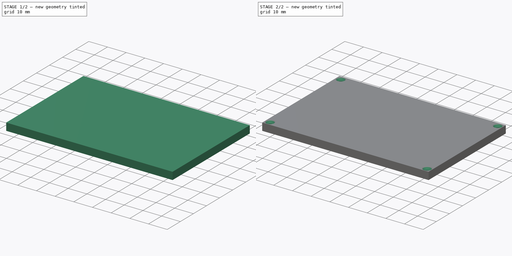
[diagram: build sequence overview — one tinted view per stage of 2, left to right]
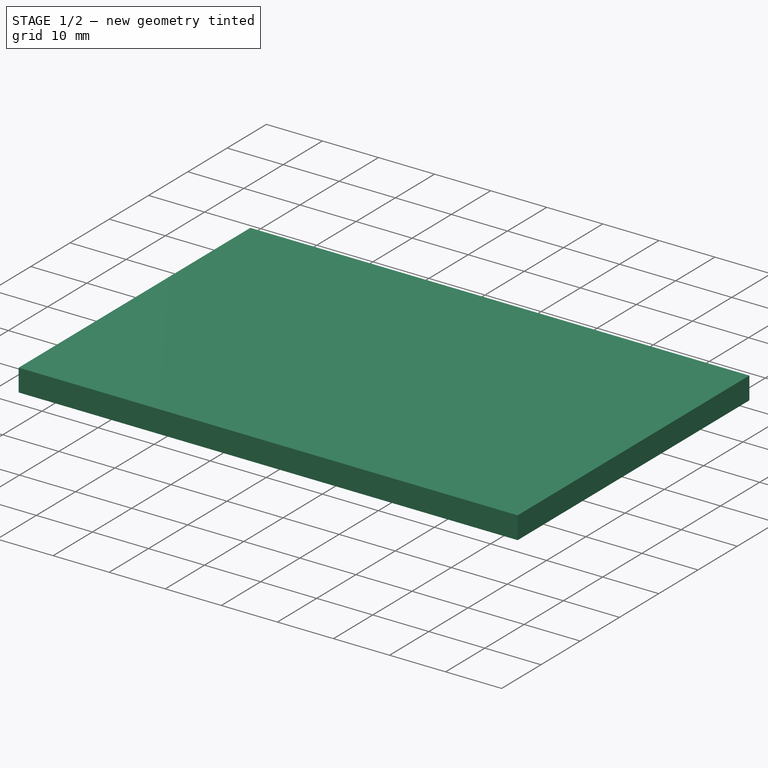
[diagram: stage 1 of 2 — iso view after this stage's code; geometry added in this stage tinted green]
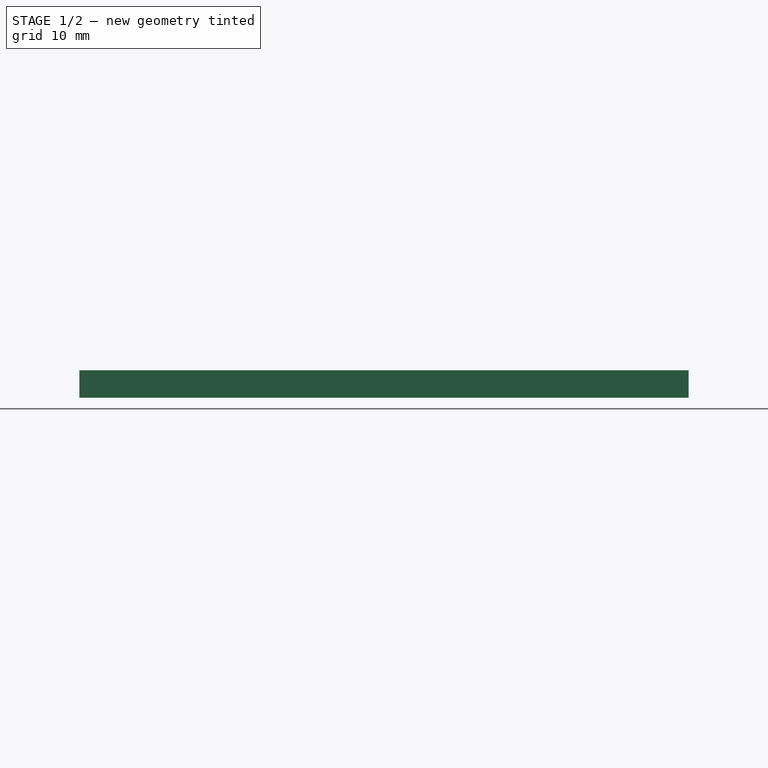
[diagram: stage 1 of 2 — front view after this stage's code; geometry added in this stage tinted green]
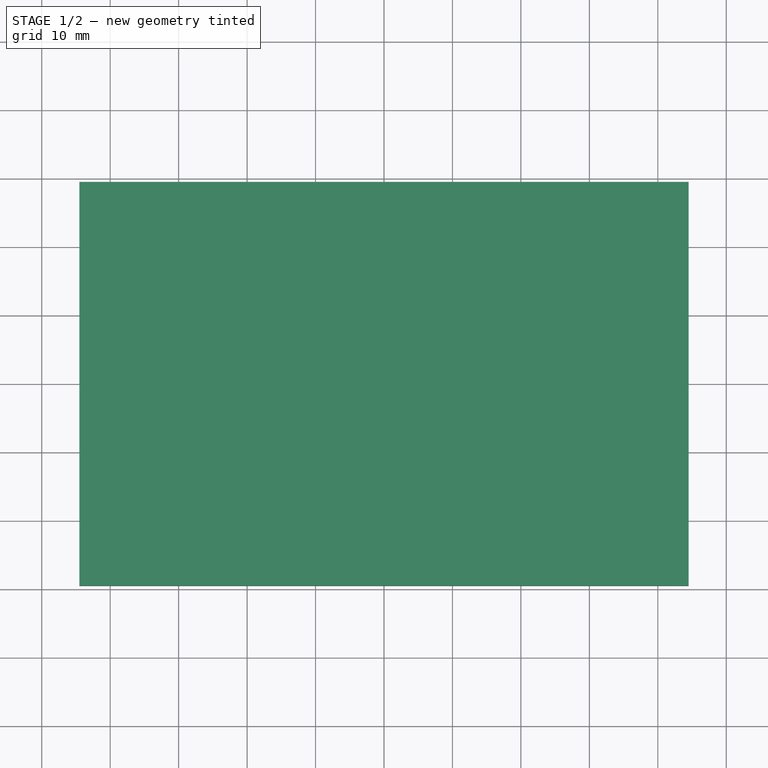
[diagram: stage 1 of 2 — top view after this stage's code; geometry added in this stage tinted green]
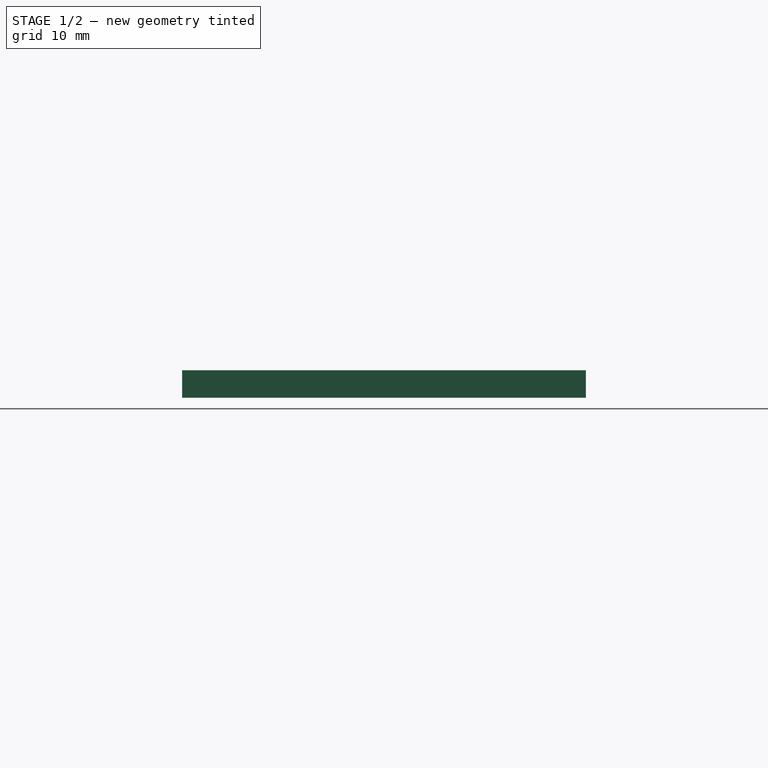
[diagram: stage 1 of 2 — right view after this stage's code; geometry added in this stage tinted green]
FCSTD DOCUMENT  (FreeCAD 0.20R29603 (Git))
Label: Breadboard_case_part2
License: All rights reserved
LicenseURL: http://en.wikipedia.org/wiki/All_rights_reserved
objects: Sketcher::SketchObject×2, Spreadsheet::Sheet×1, PartDesign::Pad×1, PartDesign::Hole×1, Part::Part2DObjectPython×1, PartDesign::Body×1, Part::Extrusion×1
note: 9 computed .brp shape members not serialized (recipe doc carries the construction recipe); baked Part::Feature solids carry a one-line shape summary decoded from their .brp

FEATURE [Sketcher::SketchObject] Sketch
  FullyConstrained = true
  MapMode = 5
  Support = -> [XY_Plane]
  expr: Constraints[10] = <<var>>.BD
  expr: Constraints[9] = <<var>>.LD
  sketch-geometry (4):
    g0: LineSegment StartX=-44.5 StartY=29.5 StartZ=0 EndX=44.5 EndY=29.5 EndZ=0
    g1: LineSegment StartX=44.5 StartY=29.5 StartZ=0 EndX=44.5 EndY=-29.5 EndZ=0
    g2: LineSegment StartX=44.5 StartY=-29.5 StartZ=0 EndX=-44.5 EndY=-29.5 EndZ=0
    g3: LineSegment StartX=-44.5 StartY=-29.5 StartZ=0 EndX=-44.5 EndY=29.5 EndZ=0
  constraints (11):
    c: Coincident(g0,g1)
    c: Coincident(g1,g2)
    c: Coincident(g2,g3)
    c: Coincident(g3,g0)
    c: Horizontal(g0)
    c: Horizontal(g2)
    c: Vertical(g1)
    c: Vertical(g3)
    c: Symmetric(g0,g2,g-1)
    c: DistanceX(g0,g0) = 89
    c: DistanceY(g1,g0) = 59
FEATURE [Spreadsheet::Sheet] Spreadsheet  label="var"
  cells = A2=Länge Deckel; B2(LD)=89; C2=79; A3=Breite Deckel; B3(BD)=59; C3=49; A4=Höhe Deckel; B4(HD)=4; A5=Schraubenlöcher Durchmesser; B5(SlD)=2.5; A6=Abstand Schraubenlöcher zum Rand; B6(ASlzR)=2.5
FEATURE [PartDesign::Pad] Pad
  Direction = (0,0,1)
  Length = 4
  Length2 = 10
  Profile = -> Sketch
  ReferenceAxis = -> Sketch [N_Axis]
  Type = 0
  expr: Length = <<var>>.HD
FEATURE [Part::Part2DObjectPython] ShapeString  # Draft 2D object (typed FeaturePython)
  FontFile = <userpath>/Downloads/unispace/unispace bd it.otf
  MakeFace = true
  Placement = pos=(-37.86,10.09,4) rot=(0,0,1;0rad)
  Size = 2
  String = 1AidTrainer
  Tracking = 0
FEATURE [PartDesign::Body] Body
  Group = -> [Sketch,Pad,Sketch001,Hole,ShapeString]
  Origin = -> Origin
  Tip = -> Hole
FEATURE [Part::Extrusion] Extrude
  Base = -> ShapeString
  Dir = (0,0,1)
  DirMode = 2
  FaceMakerClass = Part::FaceMakerBullseye
  LengthFwd = 1
  LengthRev = 0
  Reversed = true
  Solid = true
  Symmetric = false
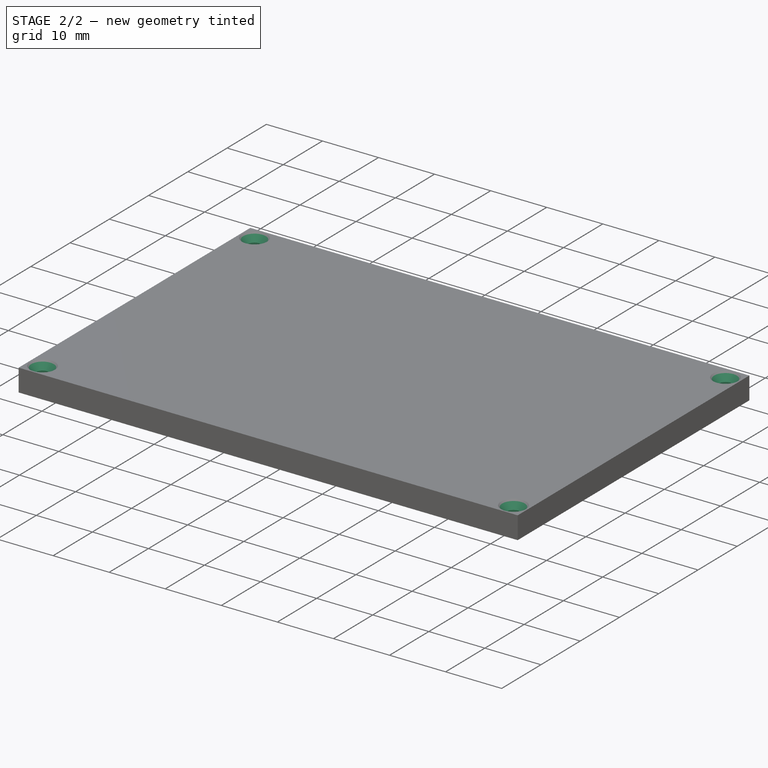
[diagram: stage 2 of 2 — iso view after this stage's code; geometry added in this stage tinted green]
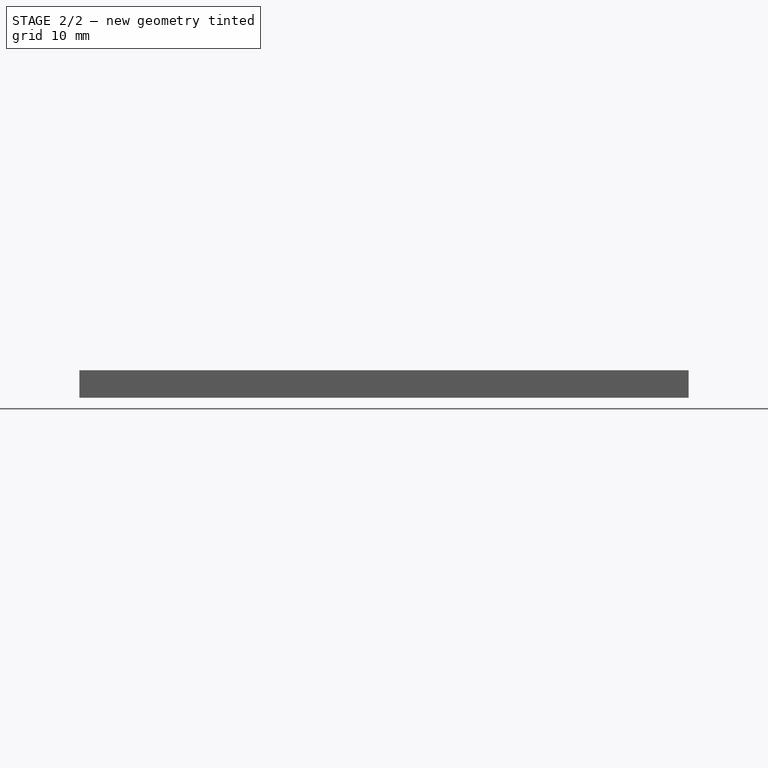
[diagram: stage 2 of 2 — front view after this stage's code; geometry added in this stage tinted green]
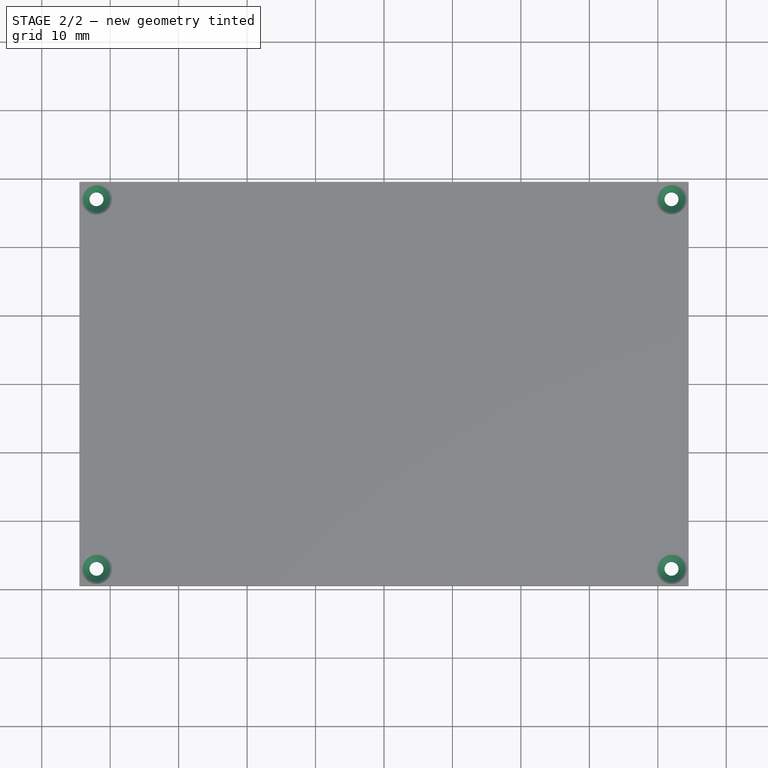
[diagram: stage 2 of 2 — top view after this stage's code; geometry added in this stage tinted green]
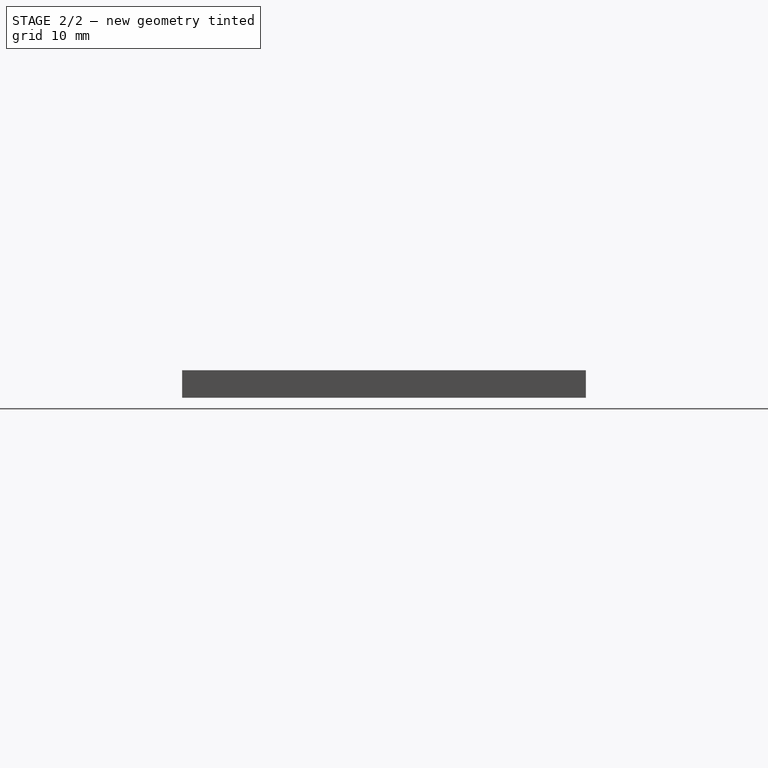
[diagram: stage 2 of 2 — right view after this stage's code; geometry added in this stage tinted green]
FEATURE [Sketcher::SketchObject] Sketch001
  ExternalGeometry = -> [Pad]
  FullyConstrained = true
  MapMode = 5
  Placement = pos=(0,0,4) rot=(0,0,1;0rad)
  Support = -> [Pad]
  expr: Constraints[10] = <<var>>.ASlzR
  expr: Constraints[11] = <<var>>.ASlzR
  expr: Constraints[3] = <<var>>.SlD
  expr: Constraints[4] = <<var>>.ASlzR
  expr: Constraints[5] = <<var>>.ASlzR
  expr: Constraints[6] = <<var>>.ASlzR
  expr: Constraints[7] = <<var>>.ASlzR
  expr: Constraints[8] = <<var>>.ASlzR
  expr: Constraints[9] = <<var>>.ASlzR
  sketch-geometry (4):
    g0: Circle CenterX=-42 CenterY=27 CenterZ=0 NormalX=0 NormalY=0 NormalZ=1 AngleXU=0 Radius=1.25
    g1: Circle CenterX=42 CenterY=27 CenterZ=0 NormalX=0 NormalY=0 NormalZ=1 AngleXU=0 Radius=1.25
    g2: Circle CenterX=42 CenterY=-27 CenterZ=0 NormalX=0 NormalY=0 NormalZ=1 AngleXU=0 Radius=1.25
    g3: Circle CenterX=-42 CenterY=-27 CenterZ=0 NormalX=0 NormalY=0 NormalZ=1 AngleXU=0 Radius=1.25
  constraints (12):
    c: Equal(g0,g1)
    c: Equal(g1,g2)
    c: Equal(g2,g3)
    c: Diameter(g0) = 2.5
    c: DistanceY(g0,g-6) = 2.5
    c: DistanceX(g-6,g0) = 2.5
    c: DistanceY(g1,g-4) = 2.5
    c: DistanceX(g1,g-4) = 2.5
    c: DistanceY(g-5,g2) = 2.5
    c: DistanceX(g2,g-5) = 2.5
    c: DistanceY(g-6,g3) = 2.5
    c: DistanceX(g-6,g3) = 2.5
FEATURE [PartDesign::Hole] Hole
  BaseFeature = -> Pad
  CustomThreadClearance = 0
  Depth = 187.958
  DepthType = 1
  Diameter = 2.05
  DrillForDepth = false
  DrillPoint = 1
  DrillPointAngle = 118
  HoleCutCountersinkAngle = 90
  HoleCutCustomValues = false
  HoleCutDepth = 0
  HoleCutDiameter = 4.5
  HoleCutType = 2
  ModelThread = false
  Profile = -> Sketch001
  Tapered = false
  TaperedAngle = 90
  ThreadClass = 0
  ThreadDepth = 187.958
  ThreadDepthType = 0
  ThreadDirection = 0
  ThreadFit = 0
  ThreadSize = 8
  ThreadType = 1
  Threaded = true
  UseCustomThreadClearance = false
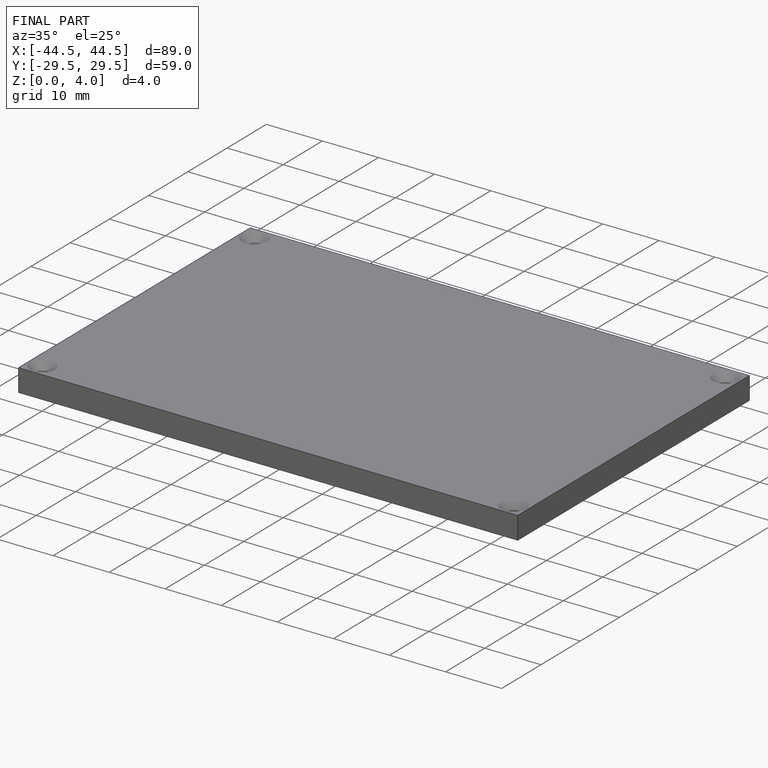
[diagram: finished part — iso view with bounding-box wireframe]
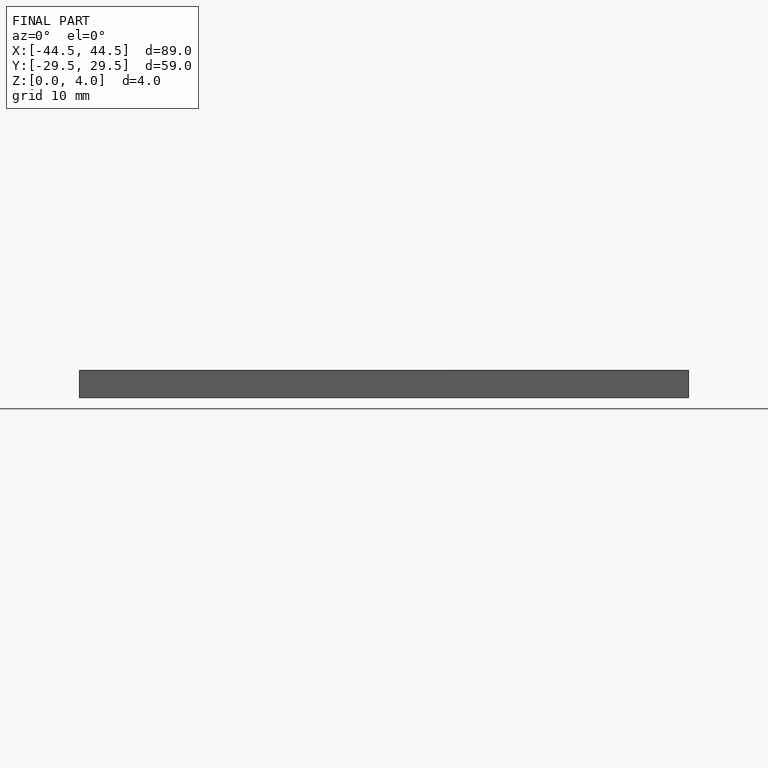
[diagram: finished part — front view with bounding-box wireframe]
